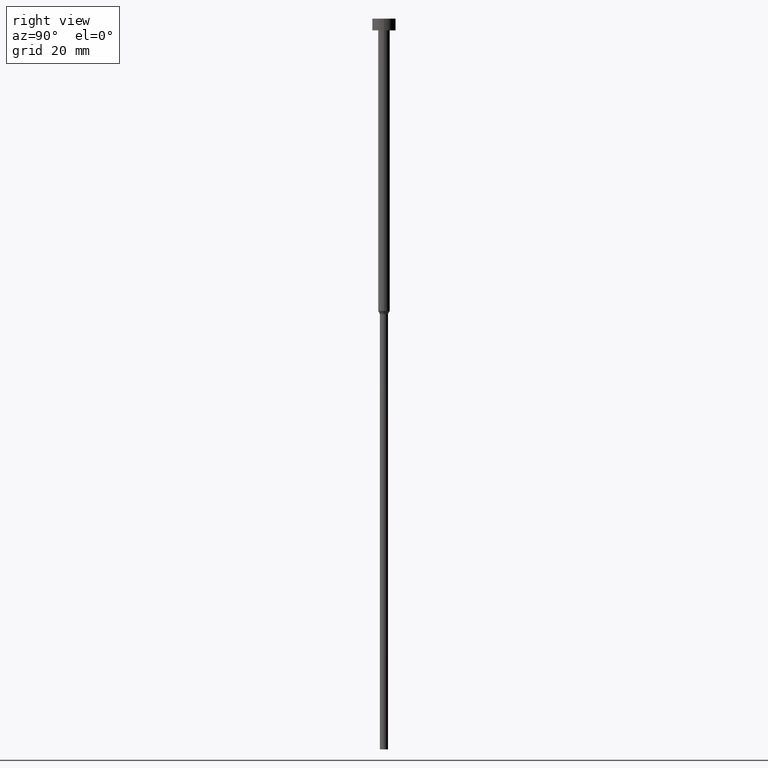
[diagram: clean part render]
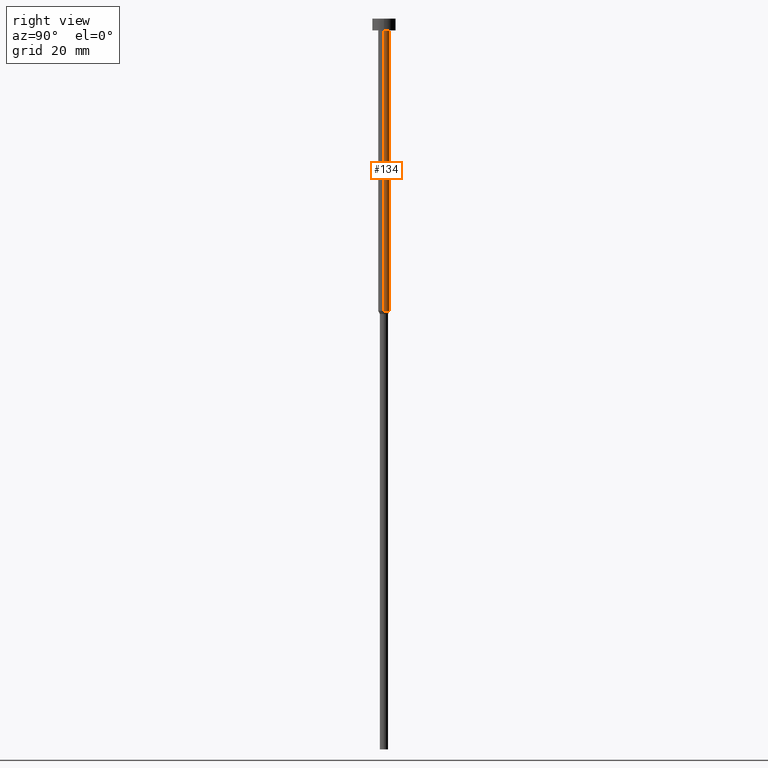
[diagram: same view with one face highlighted and labeled with its STEP entity id]
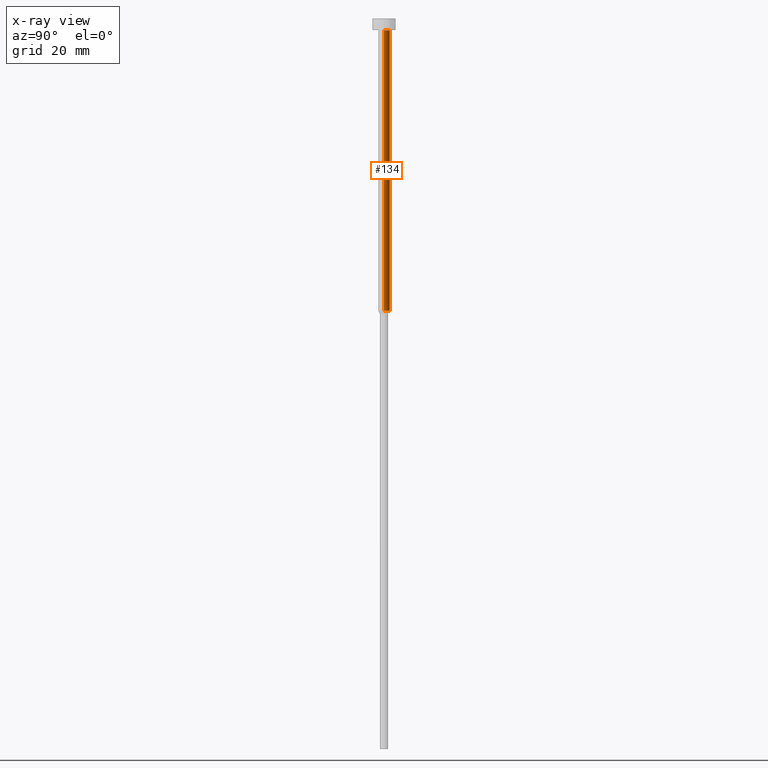
[diagram: x-ray of the same camera — body ghosted, the highlighted face saturated]
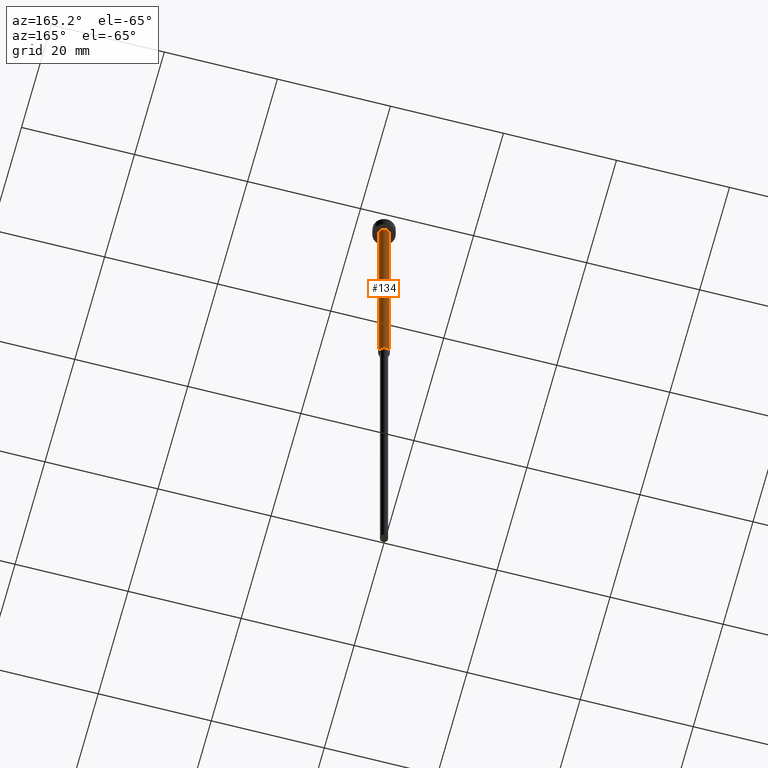
[diagram: same view with one face highlighted and labeled with its STEP entity id]
A machine part, right view. The second image highlights one B-rep face of the part: STEP entity #134.
The next image is the same camera in x-ray: the body ghosted, the highlighted face saturated — about 0% of this face is hidden behind the body in this view.
A second angle (auxiliary view) of the same face is appended — the face is thin or edge-on in the first view.
In plain terms, the highlighted cylindrical surface (edge-blend (fillet) strip) has radius 1 mm, axis along (-0, -0, 1).
Its self-contained STEP definition (entity closure, byte-faithful):
#9 = DIRECTION ( 'NONE',  ( 1.000000000000000000, 0.000000000000000000, 0.000000000000000000 ) ) ;
#13 = AXIS2_PLACEMENT_3D ( 'NONE', #66, #174, #280 ) ;
#18 = VERTEX_POINT ( 'NONE', #93 ) ;
#32 = EDGE_CURVE ( 'NONE', #90, #207, #38, .T. ) ;
#38 = CIRCLE ( 'NONE', #281, 1.000000000000003553 ) ;
#39 = CARTESIAN_POINT ( 'NONE',  ( 0.000000000000000000, 0.000000000000000000, -2.000000000000000444 ) ) ;
#49 = DIRECTION ( 'NONE',  ( -0.000000000000000000, -0.000000000000000000, 1.000000000000000000 ) ) ;
#66 = CARTESIAN_POINT ( 'NONE',  ( 0.000000000000000000, 0.000000000000000000, 0.000000000000000000 ) ) ;
#69 = DIRECTION ( 'NONE',  ( -0.000000000000000000, -0.000000000000000000, 1.000000000000000000 ) ) ;
#77 = ORIENTED_EDGE ( 'NONE', *, *, #269, .T. ) ;
#82 = VERTEX_POINT ( 'NONE', #156 ) ;
#83 = VECTOR ( 'NONE', #147, 1000.000000000000000 ) ;
#90 = VERTEX_POINT ( 'NONE', #339 ) ;
#93 = CARTESIAN_POINT ( 'NONE',  ( -1.000000000000003109, 1.224646799147356905E-16, -50.00000000000000000 ) ) ;
#111 = EDGE_CURVE ( 'NONE', #82, #18, #332, .T. ) ;
#127 = EDGE_CURVE ( 'NONE', #82, #90, #309, .T. ) ;
#134 = ADVANCED_FACE ( 'NONE', ( #203 ), #307, .T. ) ;
#145 = LINE ( 'NONE', #246, #83 ) ;
#147 = DIRECTION ( 'NONE',  ( -0.000000000000000000, -0.000000000000000000, 1.000000000000000000 ) ) ;
#156 = CARTESIAN_POINT ( 'NONE',  ( 1.000000000000003109, 0.000000000000000000, -50.00000000000000000 ) ) ;
#163 = VECTOR ( 'NONE', #49, 1000.000000000000000 ) ;
#174 = DIRECTION ( 'NONE',  ( -0.000000000000000000, -0.000000000000000000, 1.000000000000000000 ) ) ;
#179 = AXIS2_PLACEMENT_3D ( 'NONE', #343, #337, #288 ) ;
#196 = CARTESIAN_POINT ( 'NONE',  ( -1.000000000000003553, 1.224646799147357398E-16, -2.000000000000000444 ) ) ;
#203 = FACE_OUTER_BOUND ( 'NONE', #349, .T. ) ;
#207 = VERTEX_POINT ( 'NONE', #196 ) ;
#243 = ORIENTED_EDGE ( 'NONE', *, *, #111, .T. ) ;
#246 = CARTESIAN_POINT ( 'NONE',  ( -1.000000000000003331, 1.224646799147357151E-16, 0.000000000000000000 ) ) ;
#269 = EDGE_CURVE ( 'NONE', #18, #207, #145, .T. ) ;
#280 = DIRECTION ( 'NONE',  ( 1.000000000000000000, 0.000000000000000000, 0.000000000000000000 ) ) ;
#281 = AXIS2_PLACEMENT_3D ( 'NONE', #39, #69, #9 ) ;
#288 = DIRECTION ( 'NONE',  ( 1.000000000000000000, 0.000000000000000000, 0.000000000000000000 ) ) ;
#307 = CYLINDRICAL_SURFACE ( 'NONE', #13, 1.000000000000003331 ) ;
#309 = LINE ( 'NONE', #310, #163 ) ;
#310 = CARTESIAN_POINT ( 'NONE',  ( 1.000000000000003331, 0.000000000000000000, 0.000000000000000000 ) ) ;
#328 = ORIENTED_EDGE ( 'NONE', *, *, #127, .F. ) ;
#330 = ORIENTED_EDGE ( 'NONE', *, *, #32, .F. ) ;
#332 = CIRCLE ( 'NONE', #179, 1.000000000000003109 ) ;
#337 = DIRECTION ( 'NONE',  ( -0.000000000000000000, -0.000000000000000000, 1.000000000000000000 ) ) ;
#339 = CARTESIAN_POINT ( 'NONE',  ( 1.000000000000003553, 0.000000000000000000, -2.000000000000000444 ) ) ;
#343 = CARTESIAN_POINT ( 'NONE',  ( 0.000000000000000000, 0.000000000000000000, -50.00000000000000000 ) ) ;
#349 = EDGE_LOOP ( 'NONE', ( #243, #77, #330, #328 ) ) ;